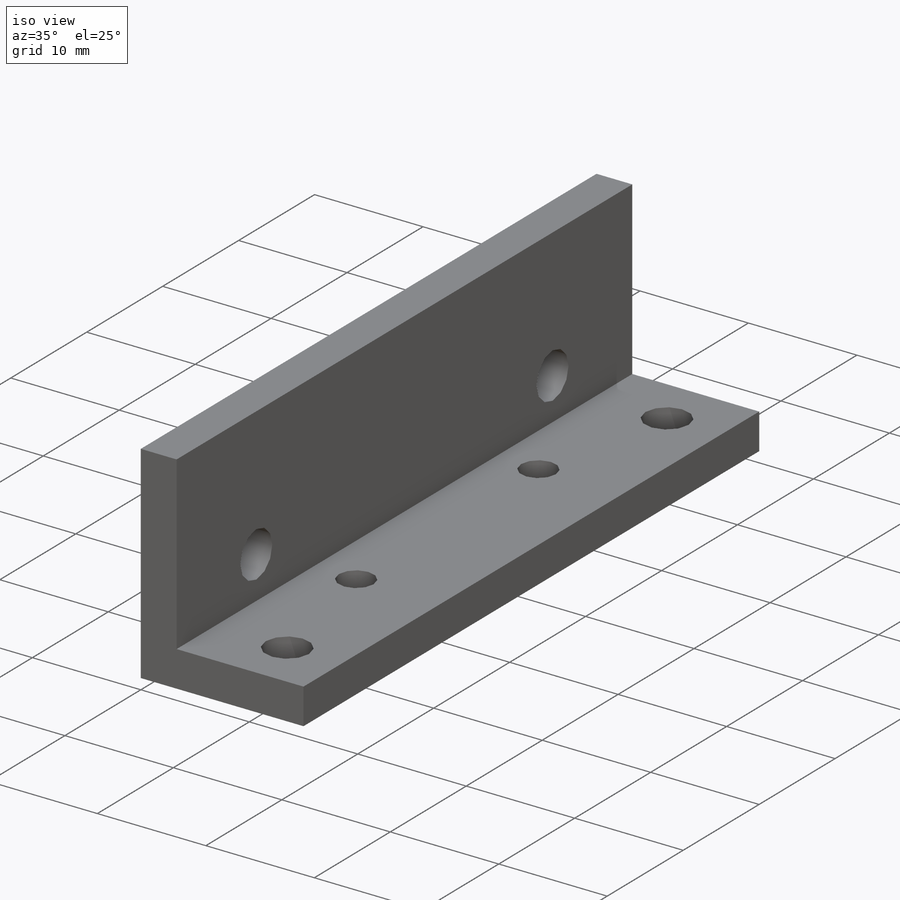
[diagram: iso view]
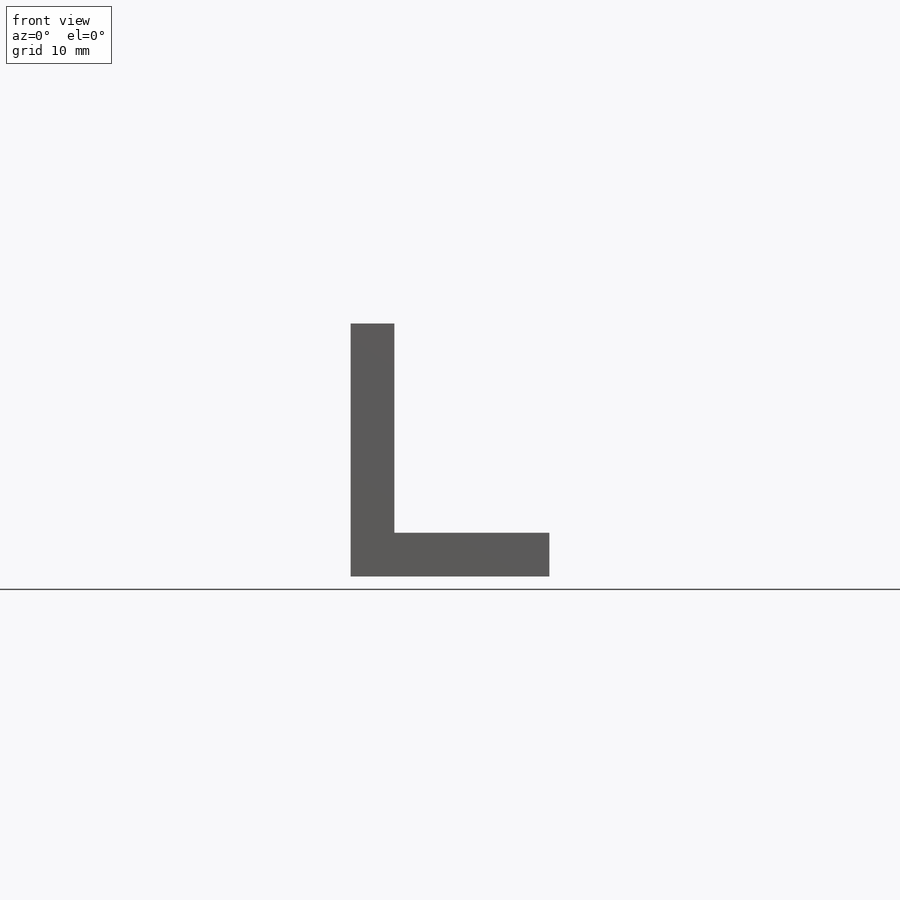
[diagram: front view]
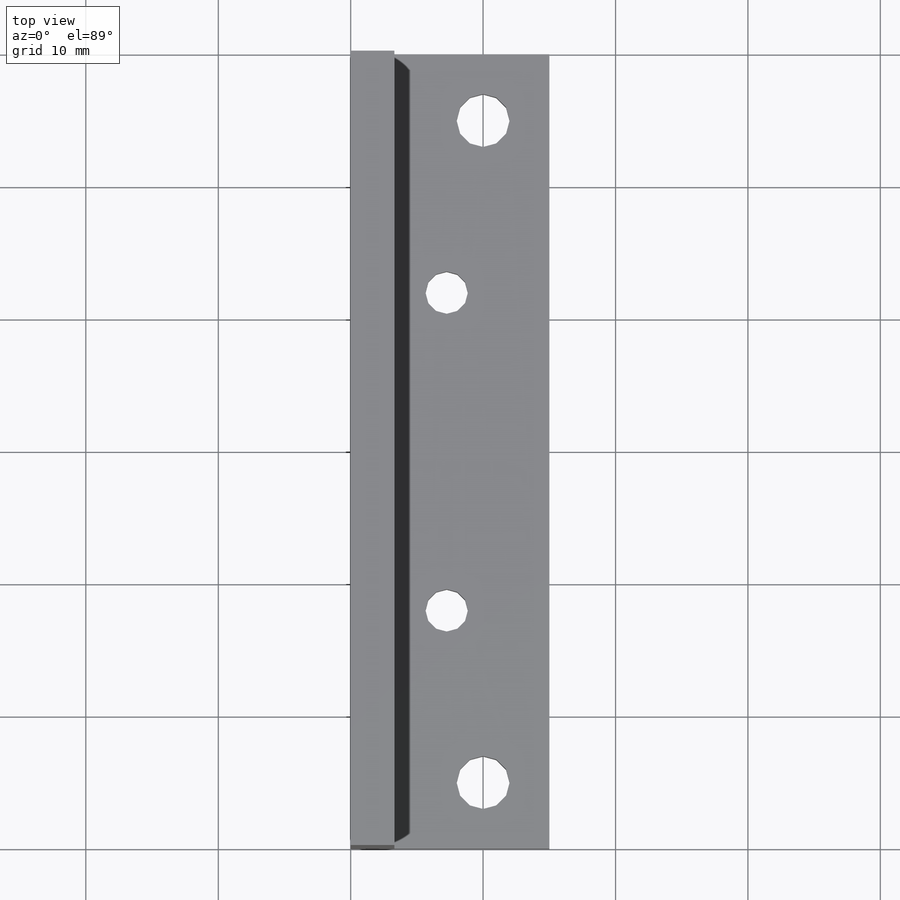
[diagram: top view]
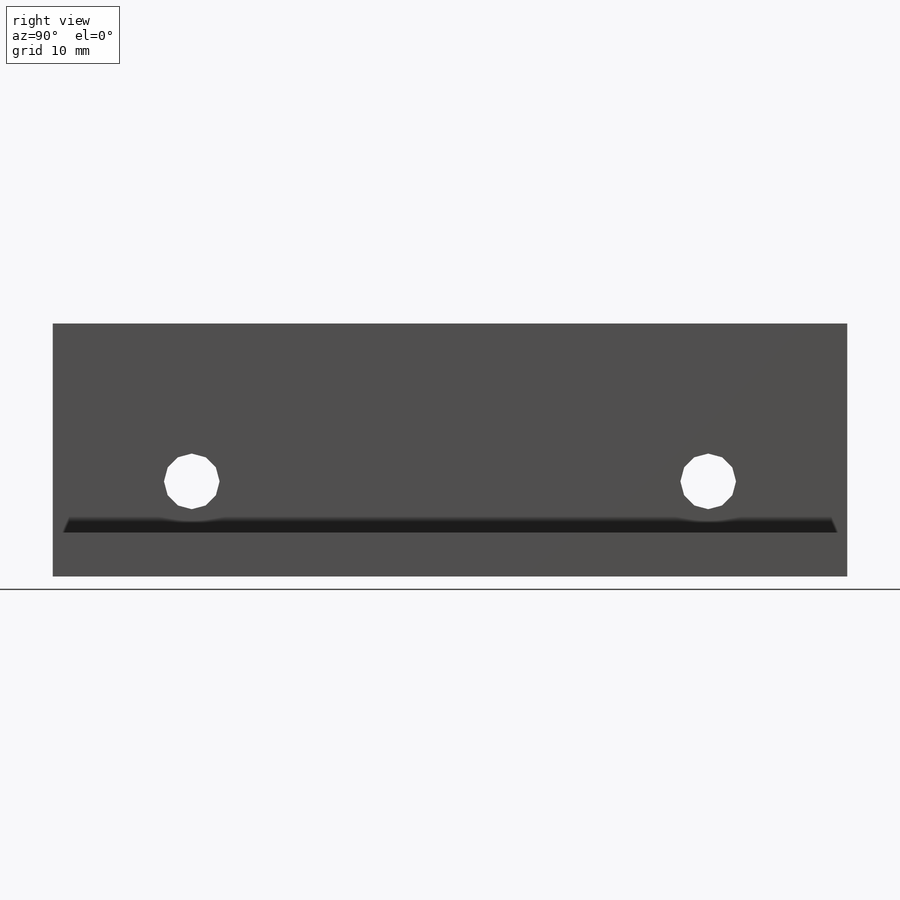
[diagram: right view]
SOLIDWORKS PART (.sldprt)
format: sldprt  version: not decoded by parser v0  size: 262,144 bytes
history: native  units: mm
features: sketch x7, cut_extrude x2, hole x2, material x1, extrude x1 (+11 scaffold rows collapsed)
feature tree (24):
  scaffold x11  (default folders/planes/origin — collapsed)
  material  "Material <not specified>"
  sketch  "Sketch1"  dims[D1=19.1mm D2=19.1mm D3=3.3mm D4=3.3mm]
  extrude  "Extrude1"  Depth=60mm
  sketch  "Sketch2"  dims[D1=15.0mm]
  cut_extrude  "Cut for walker chassis"  [1 undecoded]
  hole  "Ø4.2 (4.2) Diameter Hole1"  Diameter=4.2mm Depth=15mm
  sketch  "Sketch4"  dims[D1=39.0mm D2=19.5mm D3=7.18mm]
  sketch  "Sketch3"  dims[hole-wizard template sketch: 60 standard entries collapsed; hole parameters kept: c18.Thru Hole Depth=15.0mm]
  hole  "M4x0.7 Tapped Hole1"  Diameter=4mm Depth=3.3mm
  sketch  "Sketch6"  dims[D1=5.0mm D2=5.0mm D3=5.0mm]
  sketch  "Sketch5"  dims[hole-wizard template sketch: 59 standard entries collapsed; hole parameters kept: c18.Thread Major Dia.=4.0mm c18.Thru Tap Drill Depth=3.3mm]
  sketch  "Sketch7"  dims[c1.D1=3.2mm c1.D2=3.2mm c1.D3=3.2mm c1.D4=3.2mm c2.D2=12.0mm c2.D3=24.0mm c2.D4=7.25mm]
  cut_extrude  "Cut-Extrude1"  [1 undecoded]
decode coverage: 10 of 12 modeling features carry decoded parameters
note: ~ marks probable driven/reference dimensions
note: 2 parameter values undecoded
note: suppression state not decoded; provenance and decode notes live in map.json
